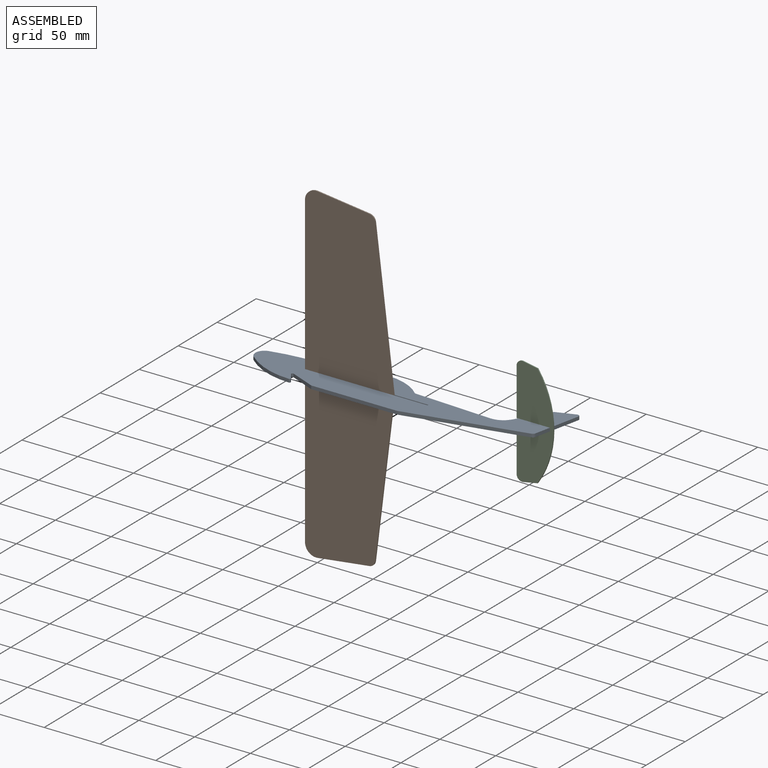
[diagram: assembled view]
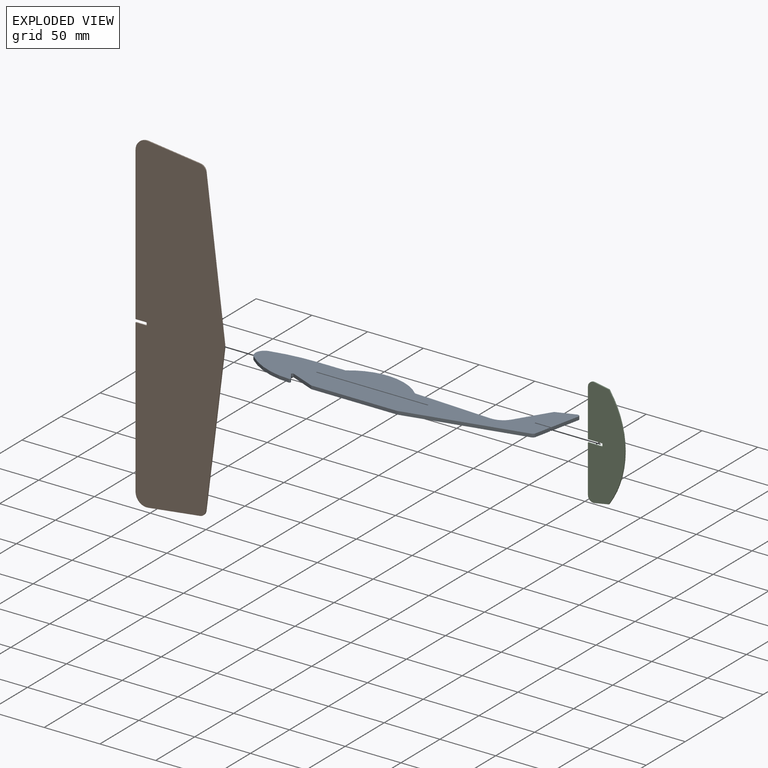
[diagram: exploded view]
GUIDED TOUR — MATED ASSEMBLY (Onshape document e0722664b0b392763e689687, AutoMate assembly e0722664b0b392763e689687_0931c867f9ec4f41d11dcecd_7c68dd6cd67540f94e2afee9_default)

This assembly has 3 components, labeled P0..P2 below (a component is one placed occurrence of a part; the same part can appear more than once), held together by 2 mates. A mate is a constraint between two components; its type names the relative motion it leaves free:
  PARALLEL — keeps the two listed directions parallel.
Axis/direction vectors are unit vectors and 'through' points are millimeter coordinates, both in the assembly's world frame.

MATES
  1. PARALLEL "Parallel 2": P1 <-> P0, direction (-1.000, 0.000, 0.000) through (-98.35, -53.44, -2.03) mm
  2. PARALLEL "Parallel 1": P2 <-> P0, direction (-1.000, 0.000, 0.000) through (80.76, -33.79, -2.03) mm

ASSEMBLY ORDER
  1. P0 — the base component [order heuristic]
  2. P1 — core [order heuristic]
  3. P2 [order verified]
Order-tag legend:
  [order verified] — this step's position reverses a verified removal order: the component was checked to insert without passing through the ones already placed.
  [order heuristic] — the first 2 components form the assembly's core: parts whose collision-free extraction could not be verified, listed in mate-graph order.

Of the 3 components, 3 carry the full construction recipe — the FeatureScript program that regenerates the part's solid from scratch; the rest are supplied as boundary geometry only.
Each toured component is shown spotlighted twice — in the assembled view, then in the exploded view, where a leader line traces a displaced component back to its assembled socket (saturated green if recipe-attached, orange if geometry-only; every other component desaturated gray) — followed by its recipe or geometry summary and the mates that hold it.
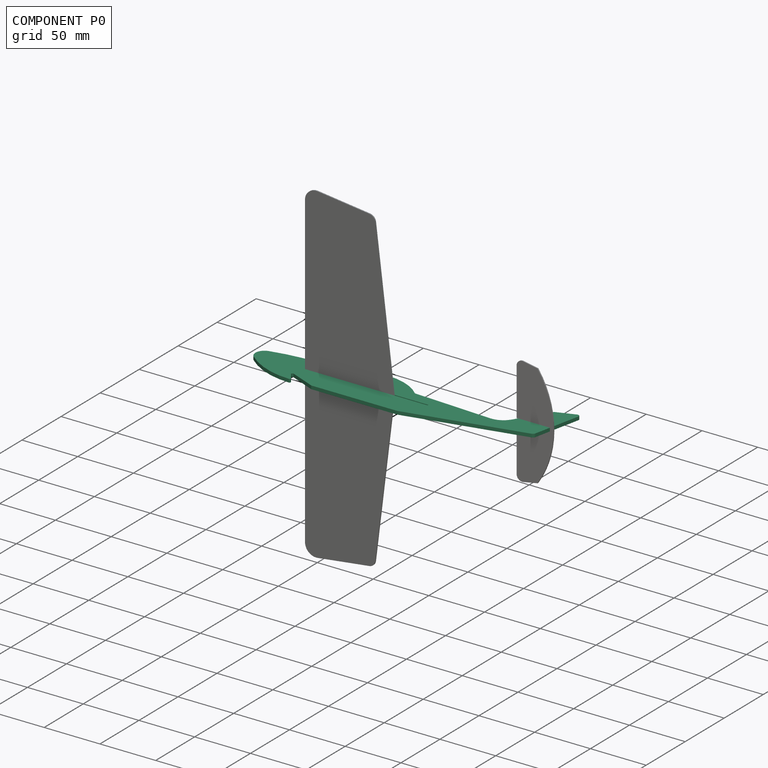
[diagram: component P0 — assembled]
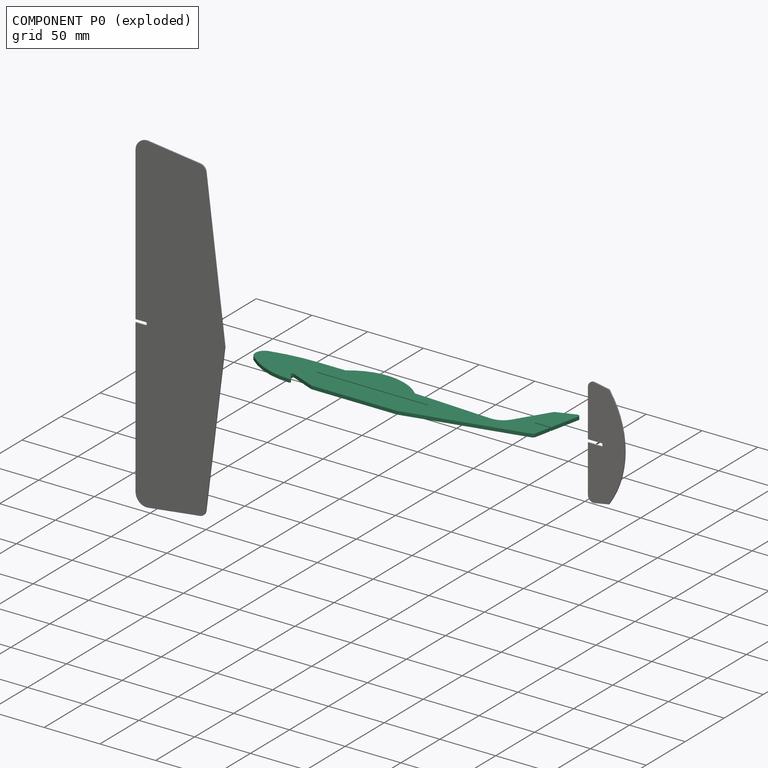
[diagram: component P0 — exploded]
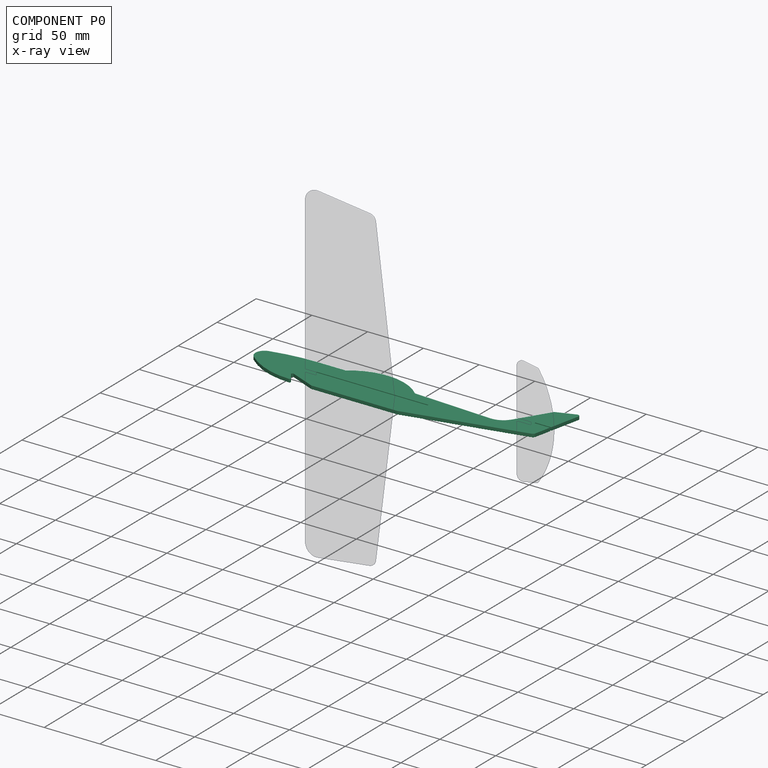
[diagram: component P0 — x-ray view]
COMPONENT P0 — recipe-attached (CADFS 00231098, mesh-verified: the recipe's output STEP matches this component's geometry to below the mesh-comparison resolution (tessellation chordal tolerance ~0.402 mm)).
Held by: PARALLEL mate "Parallel 2" to P1; PARALLEL mate "Parallel 1" to P2.
Construction recipe (FeatureScript — the CAD program that rebuilds this solid; sketch coordinates are in the units given by the * unit suffixes, e.g. mm):

FeatureScript 1560;
import(path : "onshape/std/geometry.fs", version : "1560.0");
import(path : "onshape/std/common.fs", version : "1560.0");
const mm = millimeter;
const VERTEX = EntityType.VERTEX;
const EDGE = EntityType.EDGE;
const FACE = EntityType.FACE;
const BODY = EntityType.BODY;
function v(x, y){return vector(x, y);}
function OD(order){return orderDisambiguation(order);}
function OSD(set){return originalSetDisambiguation(set);}
function TD(topology){return topologyDisambiguation(topology);}
function TDD(query){return trueDependencyDisambiguation(query);}
function sQuery(a, b, c) {return sketchEntityQuery(a, b, c);}

annotation { "Feature Type Name" : "Feature", "Feature Type Description" : "" }
export const myFeature = defineFeature(function(context is Context, id is Id, definition is map)
    precondition{}
    {
        {
            var Q0;
            Q0=qCreatedBy(makeId("Top.planeOp"),FACE);
            var sketch = newSketch(context, id + "F0", { "sketchPlane" : qUnion([Q0])});
            skLineSegment(sketch, "E0", {"start": v(-49.42, 17.27) * mm, "end": v(-52.76, 17.27) * mm});
            skArc(sketch, "E1", {"start": v(-188.26, 34.23) * mm, "mid": v(-168.11, 21.92) * mm, "end": v(-144.95, 17.28) * mm});
            skLineSegment(sketch, "E2", {"start": v(-144.08, 18.88) * mm, "end": v(-148.29, 25.13) * mm});
            skLineSegment(sketch, "E3", {"start": v(-147.03, 26.65) * mm, "end": v(-124.97, 17.35) * mm});
            skArc(sketch, "E4", {"start": v(-54.45, 49.78) * mm, "mid": v(-86.11, 63.47) * mm, "end": v(-119.06, 53.26) * mm});
            skLineSegment(sketch, "E5", {"start": v(-45.92, 17.67) * mm, "end": v(55.75, 41.36) * mm});
            skLineSegment(sketch, "E6", {"start": v(29.87, 53.21) * mm, "end": v(47.42, 81.28) * mm});
            skLineSegment(sketch, "E7", {"start": v(58.06, 43.72) * mm, "end": v(61.08, 57.78) * mm});
            skLineSegment(sketch, "E8", {"start": v(64.32, 87.96) * mm, "end": v(48.45, 82.12) * mm});
            skArc(sketch, "E9", {"start": v(-147.03, 26.65) * mm, "mid": v(-148.23, 26.36) * mm, "end": v(-148.29, 25.13) * mm});
            skArc(sketch, "E10", {"start": v(-144.95, 17.28) * mm, "mid": v(-144.03, 17.82) * mm, "end": v(-144.08, 18.88) * mm});
            skArc(sketch, "E11", {"start": v(-124.97, 17.35) * mm, "mid": v(-124.77, 17.29) * mm, "end": v(-124.57, 17.27) * mm});
            skArc(sketch, "E12", {"start": v(55.75, 41.36) * mm, "mid": v(57.25, 42.2) * mm, "end": v(58.06, 43.72) * mm});
            skArc(sketch, "E13", {"start": v(-49.42, 17.27) * mm, "mid": v(-47.66, 17.37) * mm, "end": v(-45.92, 17.67) * mm});
            skArc(sketch, "E14", {"start": v(48.45, 82.12) * mm, "mid": v(47.86, 81.79) * mm, "end": v(47.42, 81.28) * mm});
            skArc(sketch, "E15", {"start": v(67.04, 85.6) * mm, "mid": v(66.38, 87.58) * mm, "end": v(64.32, 87.96) * mm});
            skLineSegment(sketch, "E16", {"start": v(-124.48, 17.27) * mm, "end": v(-124.57, 17.27) * mm});
            skLineSegment(sketch, "E17", {"start": v(-124.48, 17.27) * mm, "end": v(-52.76, 17.27) * mm});
            skLineSegment(sketch, "E18", {"start": v(47.2, 57.78) * mm, "end": v(61.08, 57.78) * mm});
            skLineSegment(sketch, "E19", {"start": v(47.2, 58.86) * mm, "end": v(61.3, 58.86) * mm});
            skLineSegment(sketch, "E20", {"start": v(47.2, 57.78) * mm, "end": v(47.2, 58.86) * mm});
            skLineSegment(sketch, "E21", {"start": v(61.3, 58.86) * mm, "end": v(67.04, 85.6) * mm});
            skArc(sketch, "E22", {"start": v(-142.97, 53.26) * mm, "mid": v(-164, 52.08) * mm, "end": v(-184.74, 48.4) * mm});
            skLineSegment(sketch, "E23", {"start": v(-119.06, 53.26) * mm, "end": v(-144.37, 53.26) * mm});
            skArc(sketch, "E24", {"start": v(-188.26, 34.23) * mm, "mid": v(-190.8, 42.38) * mm, "end": v(-184.74, 48.4) * mm});
            skLineSegment(sketch, "E25", {"start": v(-54.45, 49.78) * mm, "end": v(15.96, 45.98) * mm});
            skArc(sketch, "E26", {"start": v(15.96, 45.98) * mm, "mid": v(23.9, 47.7) * mm, "end": v(29.87, 53.21) * mm});
            skLineSegment(sketch, "E27.bottom", {"start": v(-134.91, 39.02) * mm, "end": v(-34.91, 39.02) * mm});
            skLineSegment(sketch, "E27.top", {"start": v(-134.91, 38.02) * mm, "end": v(-34.91, 38.02) * mm});
            skLineSegment(sketch, "E27.left", {"start": v(-134.91, 39.02) * mm, "end": v(-134.91, 38.02) * mm});
            skLineSegment(sketch, "E27.right", {"start": v(-34.91, 39.02) * mm, "end": v(-34.91, 38.02) * mm});
            skSolve(sketch);
        }
        {
            var Q0;
            Q0 = qSketchRegion(id + "F0", true);
            extrude(context, id + "F1", {"entities" : qUnion([Q0]), "depth" : 3 * mm});
        }
    });
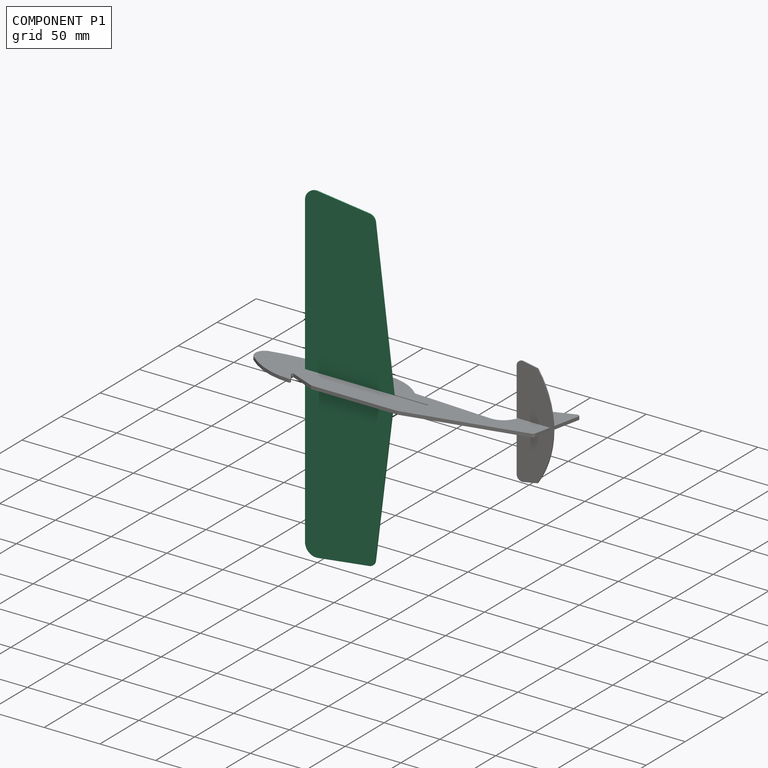
[diagram: component P1 — assembled]
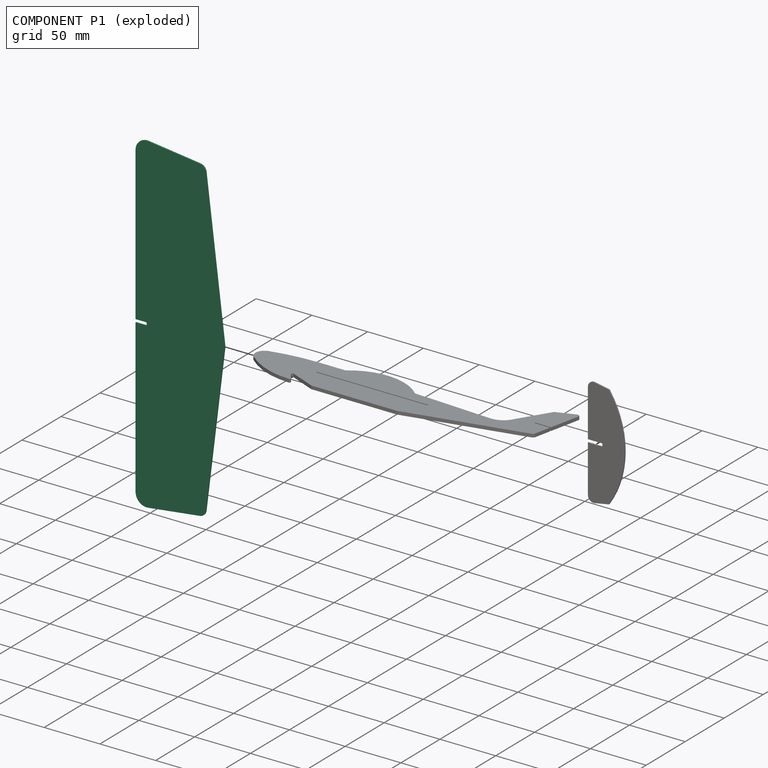
[diagram: component P1 — exploded]
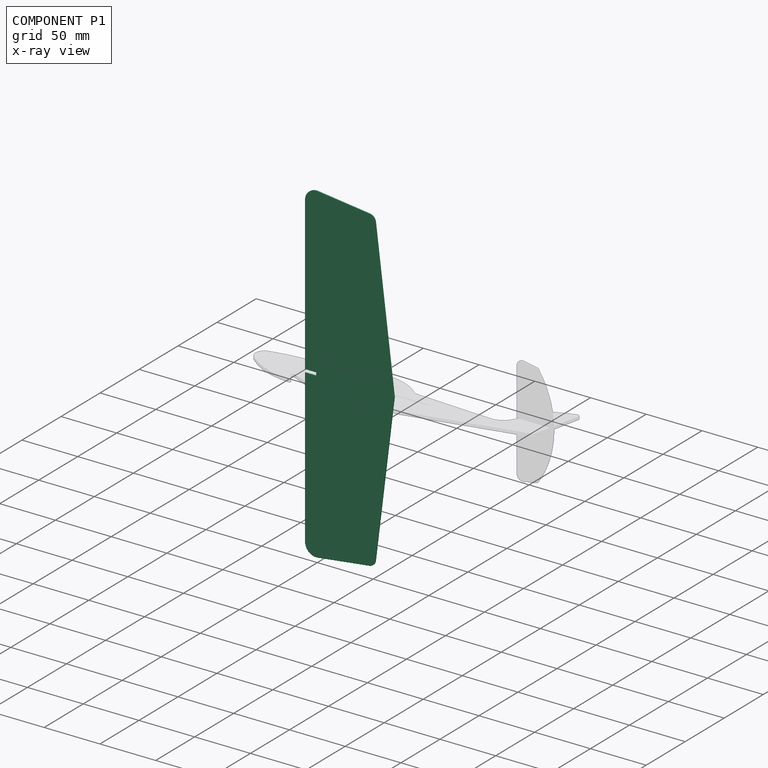
[diagram: component P1 — x-ray view]
COMPONENT P1 — recipe-attached (CADFS 00231099, mesh-verified: the recipe's output STEP matches this component's geometry to below the mesh-comparison resolution (tessellation chordal tolerance ~0.462 mm)).
Held by: PARALLEL mate "Parallel 2" to P0.
Construction recipe (FeatureScript — the CAD program that rebuilds this solid; sketch coordinates are in the units given by the * unit suffixes, e.g. mm):

FeatureScript 1560;
import(path : "onshape/std/geometry.fs", version : "1560.0");
import(path : "onshape/std/common.fs", version : "1560.0");
const mm = millimeter;
const VERTEX = EntityType.VERTEX;
const EDGE = EntityType.EDGE;
const FACE = EntityType.FACE;
const BODY = EntityType.BODY;
function v(x, y){return vector(x, y);}
function OD(order){return orderDisambiguation(order);}
function OSD(set){return originalSetDisambiguation(set);}
function TD(topology){return topologyDisambiguation(topology);}
function TDD(query){return trueDependencyDisambiguation(query);}
function sQuery(a, b, c) {return sketchEntityQuery(a, b, c);}

annotation { "Feature Type Name" : "Feature", "Feature Type Description" : "" }
export const myFeature = defineFeature(function(context is Context, id is Id, definition is map)
    precondition{}
    {
        {
            var Q0;
            Q0=qCreatedBy(makeId("Right.planeOp"),FACE);
            var sketch = newSketch(context, id + "F0", { "sketchPlane" : qUnion([Q0])});
            skLineSegment(sketch, "E0", {"start": v(-155.04, -7.11) * mm, "end": v(-17.71, -7.11) * mm});
            skLineSegment(sketch, "E1", {"start": v(-164.97, -18.35) * mm, "end": v(-159.14, -64.95) * mm});
            skLineSegment(sketch, "E2", {"start": v(132.22, -18.35) * mm, "end": v(126.4, -64.95) * mm});
            skArc(sketch, "E3", {"start": v(132.22, -18.35) * mm, "mid": v(129.8, -10.5) * mm, "end": v(122.3, -7.11) * mm});
            skArc(sketch, "E4", {"start": v(-155.04, -7.11) * mm, "mid": v(-162.54, -10.5) * mm, "end": v(-164.97, -18.35) * mm});
            skLineSegment(sketch, "E5", {"start": v(-15.03, -7.11) * mm, "end": v(-15.03, -17.11) * mm});
            skLineSegment(sketch, "E6", {"start": v(-17.71, -7.11) * mm, "end": v(-17.71, -17.11) * mm});
            skLineSegment(sketch, "E7", {"start": v(-15.03, -7.11) * mm, "end": v(122.3, -7.11) * mm});
            skLineSegment(sketch, "E8", {"start": v(-17.71, -17.11) * mm, "end": v(-15.03, -17.11) * mm});
            skLineSegment(sketch, "E9", {"start": v(-16.37, -87.11) * mm, "end": v(-153.92, -70.16) * mm});
            skLineSegment(sketch, "E10", {"start": v(-16.37, -87.11) * mm, "end": v(121.18, -70.16) * mm});
            skArc(sketch, "E11", {"start": v(-159.14, -64.95) * mm, "mid": v(-157.43, -68.45) * mm, "end": v(-153.92, -70.16) * mm});
            skArc(sketch, "E12", {"start": v(121.18, -70.16) * mm, "mid": v(124.68, -68.45) * mm, "end": v(126.4, -64.95) * mm});
            skSolve(sketch);
        }
        {
            var Q0;
            Q0 = qSketchRegion(id + "F0", true);
            extrude(context, id + "F1", {"entities" : qUnion([Q0]), "depth" : 1 * mm});
        }
    });
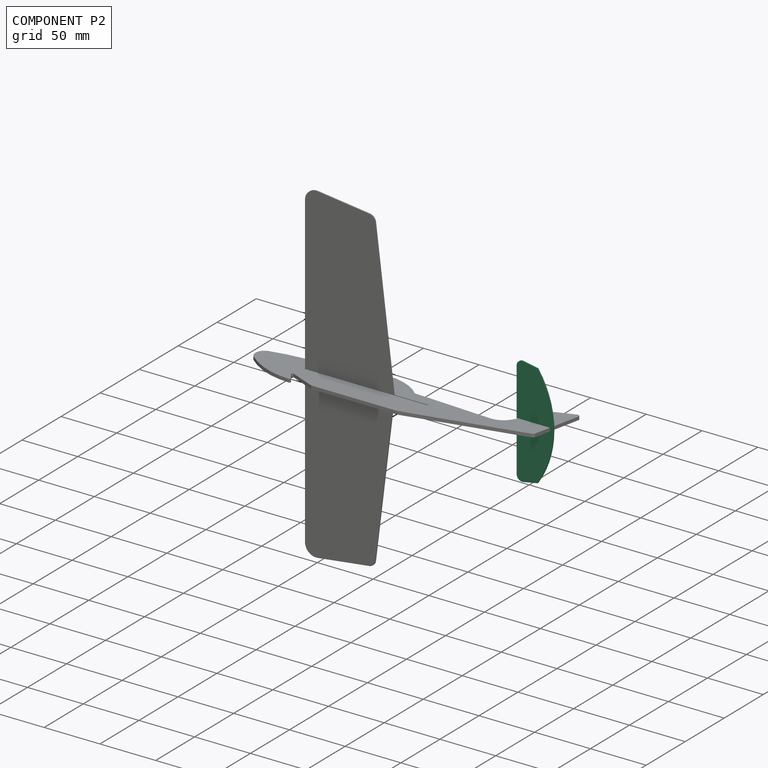
[diagram: component P2 — assembled]
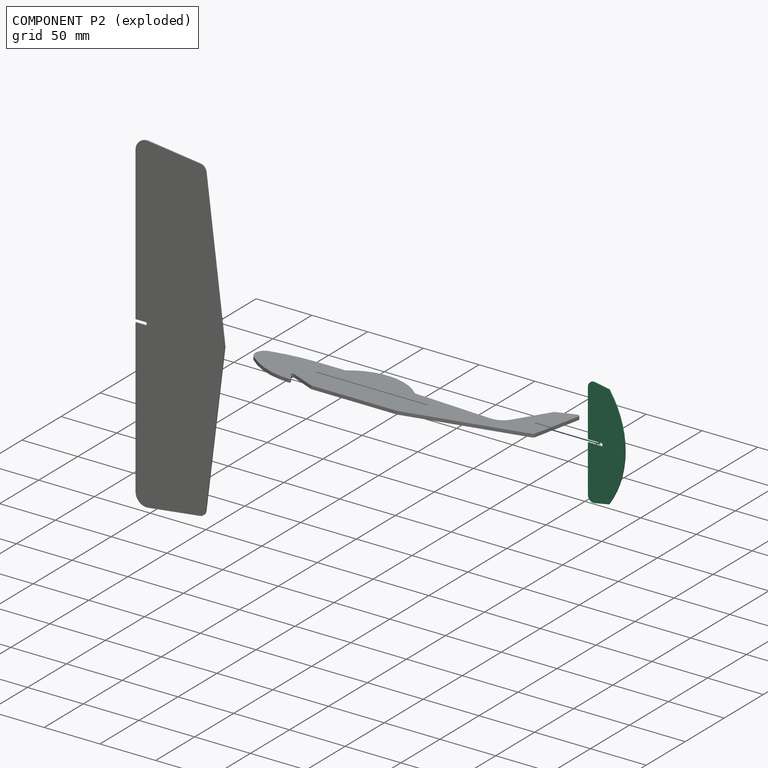
[diagram: component P2 — exploded]
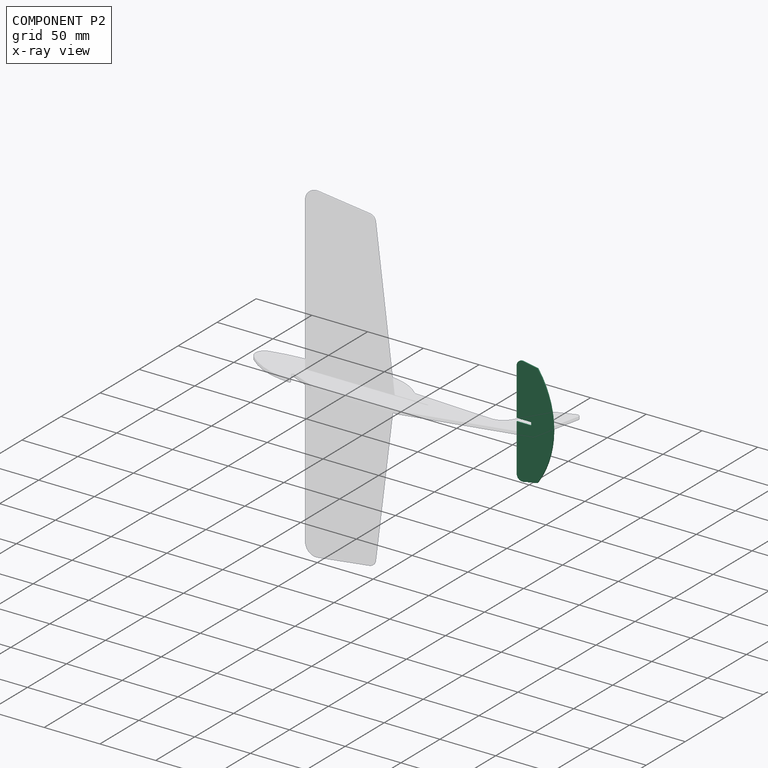
[diagram: component P2 — x-ray view]
COMPONENT P2 — recipe-attached (CADFS 00231100, mesh-verified: the recipe's output STEP matches this component's geometry to below the mesh-comparison resolution (tessellation chordal tolerance ~0.155 mm)).
Held by: PARALLEL mate "Parallel 1" to P0.
Construction recipe (FeatureScript — the CAD program that rebuilds this solid; sketch coordinates are in the units given by the * unit suffixes, e.g. mm):

FeatureScript 1560;
import(path : "onshape/std/geometry.fs", version : "1560.0");
import(path : "onshape/std/common.fs", version : "1560.0");
const mm = millimeter;
const VERTEX = EntityType.VERTEX;
const EDGE = EntityType.EDGE;
const FACE = EntityType.FACE;
const BODY = EntityType.BODY;
function v(x, y){return vector(x, y);}
function OD(order){return orderDisambiguation(order);}
function OSD(set){return originalSetDisambiguation(set);}
function TD(topology){return topologyDisambiguation(topology);}
function TDD(query){return trueDependencyDisambiguation(query);}
function sQuery(a, b, c) {return sketchEntityQuery(a, b, c);}

annotation { "Feature Type Name" : "Feature", "Feature Type Description" : "" }
export const myFeature = defineFeature(function(context is Context, id is Id, definition is map)
    precondition{}
    {
        {
            var Q0;
            Q0=qCreatedBy(makeId("Right.planeOp"),FACE);
            var sketch = newSketch(context, id + "F0", { "sketchPlane" : qUnion([Q0])});
            skLineSegment(sketch, "E0", {"start": v(94.51, 56.36) * mm, "end": v(137.16, 56.36) * mm});
            skLineSegment(sketch, "E1", {"start": v(89.6, 50.45) * mm, "end": v(91.98, 37.54) * mm});
            skLineSegment(sketch, "E2", {"start": v(187.4, 50.45) * mm, "end": v(185.01, 37.54) * mm});
            skLineSegment(sketch, "E3", {"start": v(137.16, 43.36) * mm, "end": v(139.84, 43.36) * mm});
            skLineSegment(sketch, "E4", {"start": v(139.84, 56.36) * mm, "end": v(139.84, 43.36) * mm});
            skLineSegment(sketch, "E5", {"start": v(137.16, 56.36) * mm, "end": v(137.16, 43.36) * mm});
            skLineSegment(sketch, "E6", {"start": v(139.84, 56.36) * mm, "end": v(182.49, 56.36) * mm});
            skArc(sketch, "E7", {"start": v(94.51, 56.36) * mm, "mid": v(90.67, 54.56) * mm, "end": v(89.6, 50.45) * mm});
            skArc(sketch, "E8", {"start": v(187.4, 50.45) * mm, "mid": v(186.33, 54.56) * mm, "end": v(182.49, 56.36) * mm});
            skArc(sketch, "E9", {"start": v(91.98, 37.54) * mm, "mid": v(138.5, 23.17) * mm, "end": v(185.01, 37.54) * mm});
            skSolve(sketch);
        }
        {
            var Q0;
            Q0=makeQuery(id+"F0.imprint","IMPRINT",FACE,{"disambiguationData":[TD([[makeQuery(id+"F0.imprint","IMPRINT",EDGE,{"derivedFrom":sQuery(id+"F0.wireOp",EDGE,"E0")}),-1.0]])]});
            extrude(context, id + "F1", {"entities" : qUnion([Q0]), "depth" : 1 * mm});
        }
    });
PROVENANCE & LICENSES
Assembly (occurrences, transforms, mates, per-part STEP geometry): AutoMate dataset, Zenodo record 7776208, CC0.
Construction recipes: CADFS (HuggingFace VladPyatov/CADFS, CC-BY-4.0, layered over the ABC dataset), FeatureScript reconstruction programs keyed by ABC model id.
Join: ABC meta listings map ABC model id -> Onshape documentId; within a shared document, parts are matched by geometric signature (bounding-box dims + volume at 0.1% relative tolerance, exact B-rep face/solid counts).
Verification: 3 of this assembly's 3 components carry a recipe attachment, and every attachment is mesh-verified: the CADFS STEP and the AutoMate member STEP were compared as meshes in their shared local frame (symmetric sampled-point-to-mesh distance); worst across the 3 attachments: below the mesh-comparison resolution (tessellation chordal tolerance ~0.462 mm) on a 308 mm part.
Renders: orthographic iso camera (az 35 / el 25); the floor grid conveys scale (grid pitch printed in each image; no ruler). In the exploded view each component is displaced by its stored offset vector: the offsets alone carry the explosion direction (mate normal/axis signs are not orientation cues and do not encode it), and separation distances are assigned per mate-chain, not proportionally to assembly-order depth.
